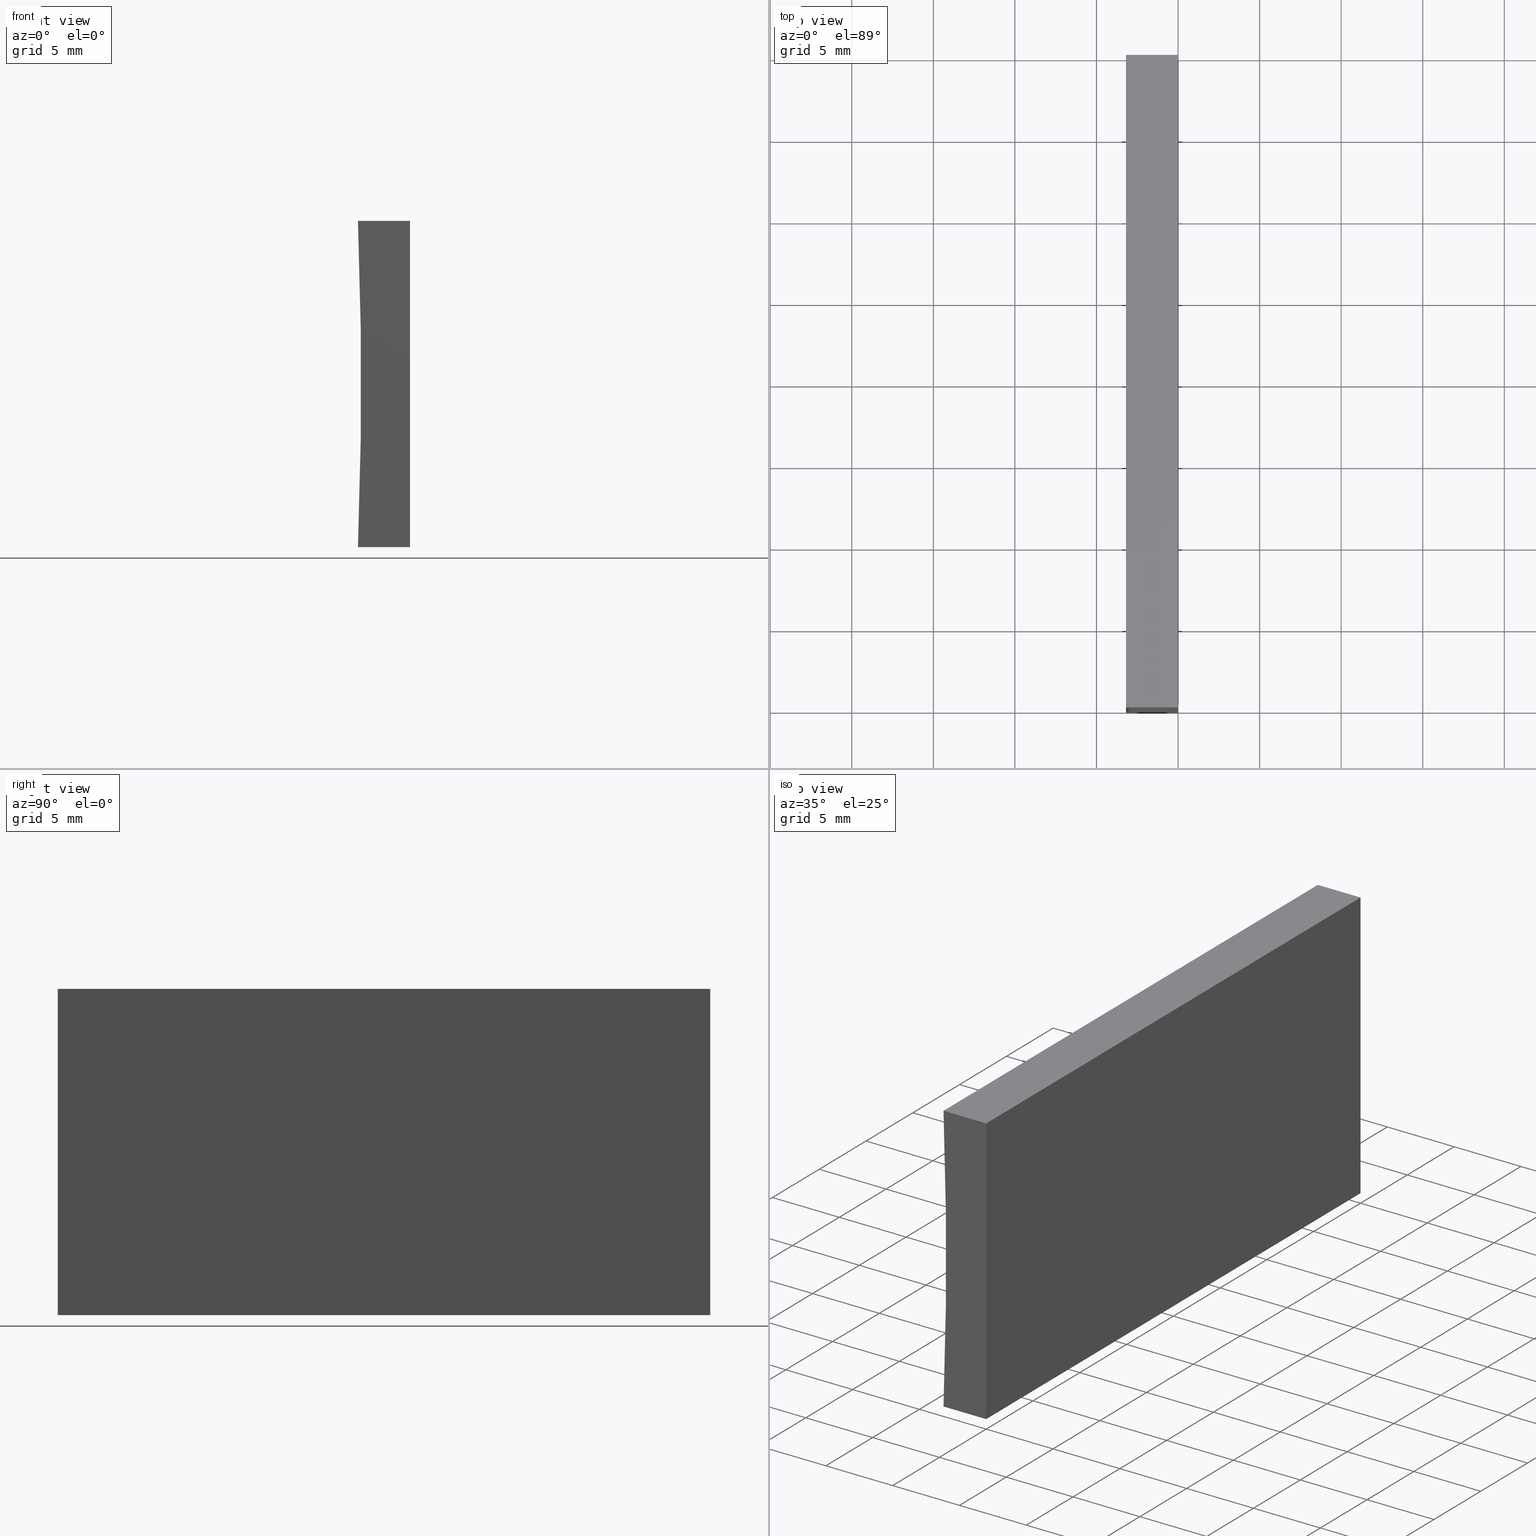
[diagram: canonical four-view strip — front | top / right | iso, engineering-drawing reading convention]
A machine part, canonical four-view strip (front | top / right | iso — engineering-drawing reading convention). The complete STEP part file that produces these views, byte-faithful:
ISO-10303-21;
HEADER;
FILE_DESCRIPTION (( 'STEP AP214' ),
    '1' );
FILE_NAME ('155361.STEP',
    '2019-06-28T07:30:50',
    ( 'user' ),
    ( '΢���й�' ),
    'SwSTEP 2.0',
    'SolidWorks 2016',
    '' );
FILE_SCHEMA (( 'AUTOMOTIVE_DESIGN' ));
ENDSEC;

DATA;
#1 = APPLICATION_CONTEXT ( 'automotive_design' ) ;
#2 = PRESENTATION_LAYER_ASSIGNMENT (  '', '', ( #76 ) ) ;
#3 = ADVANCED_FACE ( 'NONE', ( #160 ), #7, .F. ) ;
#4 = CLOSED_SHELL ( 'NONE', ( #85, #128, #3, #19, #164, #53 ) ) ;
#5 = ORIENTED_EDGE ( 'NONE', *, *, #161, .T. ) ;
#6 = AXIS2_PLACEMENT_3D ( 'NONE', #67, #20, #104 ) ;
#7 = PLANE ( 'NONE',  #25 ) ;
#8 = VECTOR ( 'NONE', #9, 1000.000000000000000 ) ;
#9 = DIRECTION ( 'NONE',  ( -0.0000000000000000000, -1.000000000000000000, -0.0000000000000000000 ) ) ;
#10 = APPLICATION_CONTEXT ( 'automotive_design' ) ;
#11 = LINE ( 'NONE', #138, #125 ) ;
#12 = LINE ( 'NONE', #123, #122 ) ;
#13 = DIRECTION ( 'NONE',  ( 0.0000000000000000000, 0.0000000000000000000, 1.000000000000000000 ) ) ;
#14 = LINE ( 'NONE', #89, #8 ) ;
#15 = PRODUCT_RELATED_PRODUCT_CATEGORY ( 'part', '', ( #51 ) ) ;
#16 = ORIENTED_EDGE ( 'NONE', *, *, #84, .F. ) ;
#17 = FACE_OUTER_BOUND ( 'NONE', #184, .T. ) ;
#18 = PRODUCT_DEFINITION_FORMATION_WITH_SPECIFIED_SOURCE ( '�κ�', '', #51, .NOT_KNOWN. ) ;
#19 = ADVANCED_FACE ( 'NONE', ( #30 ), #62, .F. ) ;
#20 = DIRECTION ( 'NONE',  ( 0.0000000000000000000, 1.000000000000000000, 0.0000000000000000000 ) ) ;
#21 = VERTEX_POINT ( 'NONE', #146 ) ;
#22 = CIRCLE ( 'NONE', #59, 258.5000000000000000 ) ;
#23 = SURFACE_STYLE_FILL_AREA ( #81 ) ;
#24 = CARTESIAN_POINT ( 'NONE',  ( -261.5000000000000000, 0.0000000000000000000, 10.00000000000003600 ) ) ;
#25 = AXIS2_PLACEMENT_3D ( 'NONE', #44, #71, #163 ) ;
#26 = SURFACE_STYLE_FILL_AREA ( #172 ) ;
#27 = DIRECTION ( 'NONE',  ( -1.000000000000000000, 0.0000000000000000000, -1.086410295692778200E-015 ) ) ;
#28 = ORIENTED_EDGE ( 'NONE', *, *, #119, .T. ) ;
#29 = DIRECTION ( 'NONE',  ( 1.000000000000000000, -0.0000000000000000000, -1.086410295692778600E-015 ) ) ;
#30 = FACE_OUTER_BOUND ( 'NONE', #175, .T. ) ;
#31 = LINE ( 'NONE', #202, #96 ) ;
#32 =( LENGTH_UNIT ( ) NAMED_UNIT ( * ) SI_UNIT ( .MILLI., .METRE. ) );
#33 = DIRECTION ( 'NONE',  ( -1.000000000000000000, 0.0000000000000000000, -1.086410295692778200E-015 ) ) ;
#34 = FILL_AREA_STYLE_COLOUR ( '', #60 ) ;
#35 = VECTOR ( 'NONE', #45, 1000.000000000000000 ) ;
#36 = ORIENTED_EDGE ( 'NONE', *, *, #119, .F. ) ;
#37 = CYLINDRICAL_SURFACE ( 'NONE', #70, 258.5000000000000000 ) ;
#38 = ORIENTED_EDGE ( 'NONE', *, *, #171, .F. ) ;
#39 = DIRECTION ( 'NONE',  ( 1.000000000000000000, 0.0000000000000000000, 1.086410295692778200E-015 ) ) ;
#40 = VECTOR ( 'NONE', #33, 1000.000000000000000 ) ;
#41 = PLANE ( 'NONE',  #72 ) ;
#42 = PRODUCT_CONTEXT ( 'NONE', #1, 'mechanical' ) ;
#43 = ORIENTED_EDGE ( 'NONE', *, *, #156, .F. ) ;
#44 = CARTESIAN_POINT ( 'NONE',  ( 1.224646799147353300E-015, 40.00000000000000000, 20.00000000000000000 ) ) ;
#45 = DIRECTION ( 'NONE',  ( -0.0000000000000000000, -1.000000000000000000, -0.0000000000000000000 ) ) ;
#46 = DIRECTION ( 'NONE',  ( 0.0000000000000000000, 1.000000000000000000, 0.0000000000000000000 ) ) ;
#47 = LINE ( 'NONE', #198, #179 ) ;
#48 = PRESENTATION_LAYER_ASSIGNMENT (  '', '', ( #151 ) ) ;
#49 = MECHANICAL_DESIGN_GEOMETRIC_PRESENTATION_REPRESENTATION (  '', ( #151 ), #132 ) ;
#50 = LINE ( 'NONE', #197, #35 ) ;
#51 = PRODUCT ( '155361', '155361', '', ( #42 ) ) ;
#52 = DIRECTION ( 'NONE',  ( -0.0000000000000000000, -1.000000000000000000, -0.0000000000000000000 ) ) ;
#53 = ADVANCED_FACE ( 'NONE', ( #189 ), #141, .F. ) ;
#54 = LINE ( 'NONE', #170, #40 ) ;
#55 = ORIENTED_EDGE ( 'NONE', *, *, #116, .T. ) ;
#56 = LINE ( 'NONE', #110, #195 ) ;
#57 = VERTEX_POINT ( 'NONE', #169 ) ;
#58 = DIRECTION ( 'NONE',  ( -1.000000000000000000, 0.0000000000000000000, 6.123233995736766000E-017 ) ) ;
#59 = AXIS2_PLACEMENT_3D ( 'NONE', #157, #52, #79 ) ;
#60 = COLOUR_RGB ( '',1.000000000000000000, 1.000000000000000000, 1.000000000000000000 ) ;
#61 = ADVANCED_BREP_SHAPE_REPRESENTATION ( '155361', ( #167, #199 ), #106 ) ;
#62 = PLANE ( 'NONE',  #65 ) ;
#63 = ORIENTED_EDGE ( 'NONE', *, *, #171, .T. ) ;
#64 = DIRECTION ( 'NONE',  ( -0.0000000000000000000, -1.000000000000000000, -0.0000000000000000000 ) ) ;
#65 = AXIS2_PLACEMENT_3D ( 'NONE', #180, #58, #185 ) ;
#66 = CIRCLE ( 'NONE', #183, 258.5000000000000000 ) ;
#67 = CARTESIAN_POINT ( 'NONE',  ( -261.5000000000000000, 40.00000000000000000, 10.00000000000003600 ) ) ;
#68 = ORIENTED_EDGE ( 'NONE', *, *, #149, .T. ) ;
#69 = ORIENTED_EDGE ( 'NONE', *, *, #149, .F. ) ;
#70 = AXIS2_PLACEMENT_3D ( 'NONE', #124, #147, #82 ) ;
#71 = DIRECTION ( 'NONE',  ( -1.086410295692778600E-015, 0.0000000000000000000, -1.000000000000000000 ) ) ;
#72 = AXIS2_PLACEMENT_3D ( 'NONE', #155, #173, #39 ) ;
#73 = ORIENTED_EDGE ( 'NONE', *, *, #142, .T. ) ;
#74 = VERTEX_POINT ( 'NONE', #158 ) ;
#75 = ORIENTED_EDGE ( 'NONE', *, *, #116, .F. ) ;
#76 = STYLED_ITEM ( 'NONE', ( #102 ), #167 ) ;
#77 =( NAMED_UNIT ( * ) SI_UNIT ( $, .STERADIAN. ) SOLID_ANGLE_UNIT ( ) );
#78 = APPLICATION_PROTOCOL_DEFINITION ( 'draft international standard', 'automotive_design', 1998, #1 ) ;
#79 = DIRECTION ( 'NONE',  ( 0.0000000000000000000, 0.0000000000000000000, 1.000000000000000000 ) ) ;
#80 = DIRECTION ( 'NONE',  ( -6.123233995736766000E-017, -0.0000000000000000000, -1.000000000000000000 ) ) ;
#81 = FILL_AREA_STYLE ('',( #34 ) ) ;
#82 = DIRECTION ( 'NONE',  ( 0.0000000000000000000, 0.0000000000000000000, -1.000000000000000000 ) ) ;
#83 = PRODUCT_DEFINITION ( 'δ֪', '', #18, #162 ) ;
#84 = EDGE_CURVE ( 'NONE', #177, #191, #31, .T. ) ;
#85 = ADVANCED_FACE ( 'NONE', ( #194 ), #41, .F. ) ;
#86 = EDGE_LOOP ( 'NONE', ( #129, #43, #90, #115 ) ) ;
#87 = SHAPE_DEFINITION_REPRESENTATION ( #153, #61 ) ;
#88 = CARTESIAN_POINT ( 'NONE',  ( 0.0000000000000000000, 0.0000000000000000000, 0.0000000000000000000 ) ) ;
#89 = CARTESIAN_POINT ( 'NONE',  ( 0.0000000000000000000, 40.00000000000000000, 0.0000000000000000000 ) ) ;
#90 = ORIENTED_EDGE ( 'NONE', *, *, #192, .F. ) ;
#91 = DIRECTION ( 'NONE',  ( -6.123233995736766000E-017, -0.0000000000000000000, -1.000000000000000000 ) ) ;
#92 = LINE ( 'NONE', #114, #150 ) ;
#93 = SURFACE_SIDE_STYLE ('',( #26 ) ) ;
#94 = DIRECTION ( 'NONE',  ( 0.0000000000000000000, 0.0000000000000000000, 1.000000000000000000 ) ) ;
#95 = EDGE_LOOP ( 'NONE', ( #55, #131, #69, #134 ) ) ;
#96 = VECTOR ( 'NONE', #188, 1000.000000000000000 ) ;
#97 = CARTESIAN_POINT ( 'NONE',  ( 1.224646799147353300E-015, 40.00000000000000000, 20.00000000000000000 ) ) ;
#98 = ORIENTED_EDGE ( 'NONE', *, *, #118, .T. ) ;
#99 =( GEOMETRIC_REPRESENTATION_CONTEXT ( 3 ) GLOBAL_UNCERTAINTY_ASSIGNED_CONTEXT ( ( #143 ) ) GLOBAL_UNIT_ASSIGNED_CONTEXT ( ( #193, #127, #77 ) ) REPRESENTATION_CONTEXT ( 'NONE', 'WORKASPACE' ) );
#100 = ORIENTED_EDGE ( 'NONE', *, *, #136, .T. ) ;
#101 = PRESENTATION_STYLE_ASSIGNMENT (( #166 ) ) ;
#102 = PRESENTATION_STYLE_ASSIGNMENT (( #201 ) ) ;
#103 = EDGE_LOOP ( 'NONE', ( #135, #36, #75, #203 ) ) ;
#104 = DIRECTION ( 'NONE',  ( 0.0000000000000000000, -0.0000000000000000000, 1.000000000000000000 ) ) ;
#105 = ORIENTED_EDGE ( 'NONE', *, *, #118, .F. ) ;
#106 =( GEOMETRIC_REPRESENTATION_CONTEXT ( 3 ) GLOBAL_UNCERTAINTY_ASSIGNED_CONTEXT ( ( #168 ) ) GLOBAL_UNIT_ASSIGNED_CONTEXT ( ( #32, #145, #196 ) ) REPRESENTATION_CONTEXT ( 'NONE', 'WORKASPACE' ) );
#107 = DIRECTION ( 'NONE',  ( 1.000000000000000000, 0.0000000000000000000, 0.0000000000000000000 ) ) ;
#108 = CARTESIAN_POINT ( 'NONE',  ( -3.193496016844377100, 40.00000000000000000, -1.734723475976807100E-014 ) ) ;
#109 = EDGE_CURVE ( 'NONE', #191, #21, #66, .T. ) ;
#110 = CARTESIAN_POINT ( 'NONE',  ( 1.224646799147353300E-015, 40.00000000000000000, 20.00000000000000000 ) ) ;
#111 = VERTEX_POINT ( 'NONE', #137 ) ;
#112 = PLANE ( 'NONE',  #6 ) ;
#113 = APPLICATION_PROTOCOL_DEFINITION ( 'draft international standard', 'automotive_design', 1998, #10 ) ;
#114 = CARTESIAN_POINT ( 'NONE',  ( 0.0000000000000000000, 40.00000000000000000, 0.0000000000000000000 ) ) ;
#115 = ORIENTED_EDGE ( 'NONE', *, *, #84, .T. ) ;
#116 = EDGE_CURVE ( 'NONE', #21, #74, #47, .T. ) ;
#117 = VERTEX_POINT ( 'NONE', #140 ) ;
#118 = EDGE_CURVE ( 'NONE', #57, #177, #11, .T. ) ;
#119 = EDGE_CURVE ( 'NONE', #74, #111, #178, .T. ) ;
#120 =( LENGTH_UNIT ( ) NAMED_UNIT ( * ) SI_UNIT ( .MILLI., .METRE. ) );
#121 = DIRECTION ( 'NONE',  ( -0.0000000000000000000, -1.000000000000000000, -0.0000000000000000000 ) ) ;
#122 = VECTOR ( 'NONE', #29, 1000.000000000000000 ) ;
#123 = CARTESIAN_POINT ( 'NONE',  ( 1.224646799147353300E-015, 40.00000000000000000, 20.00000000000000000 ) ) ;
#124 = CARTESIAN_POINT ( 'NONE',  ( -261.5000000000000000, 40.00000000000000000, 10.00000000000003600 ) ) ;
#125 = VECTOR ( 'NONE', #27, 1000.000000000000000 ) ;
#126 =( NAMED_UNIT ( * ) PLANE_ANGLE_UNIT ( ) SI_UNIT ( $, .RADIAN. ) );
#127 =( NAMED_UNIT ( * ) PLANE_ANGLE_UNIT ( ) SI_UNIT ( $, .RADIAN. ) );
#128 = ADVANCED_FACE ( 'NONE', ( #190 ), #37, .F. ) ;
#129 = ORIENTED_EDGE ( 'NONE', *, *, #109, .T. ) ;
#130 = FILL_AREA_STYLE_COLOUR ( '', #144 ) ;
#131 = ORIENTED_EDGE ( 'NONE', *, *, #142, .F. ) ;
#132 =( GEOMETRIC_REPRESENTATION_CONTEXT ( 3 ) GLOBAL_UNCERTAINTY_ASSIGNED_CONTEXT ( ( #133 ) ) GLOBAL_UNIT_ASSIGNED_CONTEXT ( ( #120, #126, #204 ) ) REPRESENTATION_CONTEXT ( 'NONE', 'WORKASPACE' ) );
#133 = UNCERTAINTY_MEASURE_WITH_UNIT (LENGTH_MEASURE( 1.000000000000000100E-005 ), #120, 'distance_accuracy_value', 'NONE');
#134 = ORIENTED_EDGE ( 'NONE', *, *, #156, .T. ) ;
#135 = ORIENTED_EDGE ( 'NONE', *, *, #161, .F. ) ;
#136 = EDGE_CURVE ( 'NONE', #165, #57, #92, .T. ) ;
#137 = CARTESIAN_POINT ( 'NONE',  ( 0.0000000000000000000, 0.0000000000000000000, 0.0000000000000000000 ) ) ;
#138 = CARTESIAN_POINT ( 'NONE',  ( 0.0000000000000000000, 40.00000000000000000, 0.0000000000000000000 ) ) ;
#139 = CARTESIAN_POINT ( 'NONE',  ( 0.0000000000000000000, 0.0000000000000000000, 0.0000000000000000000 ) ) ;
#140 = CARTESIAN_POINT ( 'NONE',  ( -3.193496016844379300, 40.00000000000000000, 20.00000000000000400 ) ) ;
#141 = PLANE ( 'NONE',  #187 ) ;
#142 = EDGE_CURVE ( 'NONE', #165, #74, #56, .T. ) ;
#143 = UNCERTAINTY_MEASURE_WITH_UNIT (LENGTH_MEASURE( 1.000000000000000100E-005 ), #193, 'distance_accuracy_value', 'NONE');
#144 = COLOUR_RGB ( '',1.000000000000000000, 1.000000000000000000, 1.000000000000000000 ) ;
#145 =( NAMED_UNIT ( * ) PLANE_ANGLE_UNIT ( ) SI_UNIT ( $, .RADIAN. ) );
#146 = CARTESIAN_POINT ( 'NONE',  ( -3.193496016844379300, 0.0000000000000000000, 20.00000000000000400 ) ) ;
#147 = DIRECTION ( 'NONE',  ( -0.0000000000000000000, -1.000000000000000000, -0.0000000000000000000 ) ) ;
#148 = ORIENTED_EDGE ( 'NONE', *, *, #136, .F. ) ;
#149 = EDGE_CURVE ( 'NONE', #117, #165, #12, .T. ) ;
#150 = VECTOR ( 'NONE', #91, 1000.000000000000000 ) ;
#151 = STYLED_ITEM ( 'NONE', ( #101 ), #61 ) ;
#152 = EDGE_LOOP ( 'NONE', ( #5, #16, #105, #63 ) ) ;
#153 = PRODUCT_DEFINITION_SHAPE ( 'NONE', 'NONE',  #83 ) ;
#154 = SURFACE_SIDE_STYLE ('',( #23 ) ) ;
#155 = CARTESIAN_POINT ( 'NONE',  ( 0.0000000000000000000, 40.00000000000000000, 0.0000000000000000000 ) ) ;
#156 = EDGE_CURVE ( 'NONE', #117, #21, #50, .T. ) ;
#157 = CARTESIAN_POINT ( 'NONE',  ( -261.5000000000000000, 40.00000000000000000, 10.00000000000003600 ) ) ;
#158 = CARTESIAN_POINT ( 'NONE',  ( 1.224646799147353300E-015, 0.0000000000000000000, 20.00000000000000000 ) ) ;
#159 = CARTESIAN_POINT ( 'NONE',  ( -261.5000000000000000, 0.0000000000000000000, 10.00000000000003600 ) ) ;
#160 = FACE_OUTER_BOUND ( 'NONE', #95, .T. ) ;
#161 = EDGE_CURVE ( 'NONE', #111, #191, #54, .T. ) ;
#162 = PRODUCT_DEFINITION_CONTEXT ( 'detailed design', #10, 'design' ) ;
#163 = DIRECTION ( 'NONE',  ( -1.000000000000000000, 0.0000000000000000000, 1.086410295692778600E-015 ) ) ;
#164 = ADVANCED_FACE ( 'NONE', ( #17 ), #112, .T. ) ;
#165 = VERTEX_POINT ( 'NONE', #97 ) ;
#166 = SURFACE_STYLE_USAGE ( .BOTH. , #93 ) ;
#167 = MANIFOLD_SOLID_BREP ( '͹̨-����1', #4 ) ;
#168 = UNCERTAINTY_MEASURE_WITH_UNIT (LENGTH_MEASURE( 1.000000000000000100E-005 ), #32, 'distance_accuracy_value', 'NONE');
#169 = CARTESIAN_POINT ( 'NONE',  ( 0.0000000000000000000, 40.00000000000000000, 0.0000000000000000000 ) ) ;
#170 = CARTESIAN_POINT ( 'NONE',  ( 0.0000000000000000000, 0.0000000000000000000, 0.0000000000000000000 ) ) ;
#171 = EDGE_CURVE ( 'NONE', #57, #111, #14, .T. ) ;
#172 = FILL_AREA_STYLE ('',( #130 ) ) ;
#173 = DIRECTION ( 'NONE',  ( -1.086410295692778200E-015, 0.0000000000000000000, 1.000000000000000000 ) ) ;
#174 = ORIENTED_EDGE ( 'NONE', *, *, #192, .T. ) ;
#175 = EDGE_LOOP ( 'NONE', ( #28, #38, #148, #73 ) ) ;
#176 = MECHANICAL_DESIGN_GEOMETRIC_PRESENTATION_REPRESENTATION (  '', ( #76 ), #99 ) ;
#177 = VERTEX_POINT ( 'NONE', #108 ) ;
#178 = LINE ( 'NONE', #139, #186 ) ;
#179 = VECTOR ( 'NONE', #200, 1000.000000000000000 ) ;
#180 = CARTESIAN_POINT ( 'NONE',  ( 0.0000000000000000000, 40.00000000000000000, 0.0000000000000000000 ) ) ;
#181 = CARTESIAN_POINT ( 'NONE',  ( -3.193496016844377100, 0.0000000000000000000, -1.734723475976807100E-014 ) ) ;
#182 = DIRECTION ( 'NONE',  ( 0.0000000000000000000, -0.0000000000000000000, 1.000000000000000000 ) ) ;
#183 = AXIS2_PLACEMENT_3D ( 'NONE', #24, #64, #94 ) ;
#184 = EDGE_LOOP ( 'NONE', ( #98, #174, #68, #100 ) ) ;
#185 = DIRECTION ( 'NONE',  ( 6.123233995736766000E-017, 0.0000000000000000000, 1.000000000000000000 ) ) ;
#186 = VECTOR ( 'NONE', #80, 1000.000000000000000 ) ;
#187 = AXIS2_PLACEMENT_3D ( 'NONE', #159, #46, #182 ) ;
#188 = DIRECTION ( 'NONE',  ( -0.0000000000000000000, -1.000000000000000000, -0.0000000000000000000 ) ) ;
#189 = FACE_OUTER_BOUND ( 'NONE', #103, .T. ) ;
#190 = FACE_OUTER_BOUND ( 'NONE', #86, .T. ) ;
#191 = VERTEX_POINT ( 'NONE', #181 ) ;
#192 = EDGE_CURVE ( 'NONE', #177, #117, #22, .T. ) ;
#193 =( LENGTH_UNIT ( ) NAMED_UNIT ( * ) SI_UNIT ( .MILLI., .METRE. ) );
#194 = FACE_OUTER_BOUND ( 'NONE', #152, .T. ) ;
#195 = VECTOR ( 'NONE', #121, 1000.000000000000000 ) ;
#196 =( NAMED_UNIT ( * ) SI_UNIT ( $, .STERADIAN. ) SOLID_ANGLE_UNIT ( ) );
#197 = CARTESIAN_POINT ( 'NONE',  ( -3.193496016844379300, 40.00000000000000000, 20.00000000000000400 ) ) ;
#198 = CARTESIAN_POINT ( 'NONE',  ( 1.224646799147353300E-015, 0.0000000000000000000, 20.00000000000000000 ) ) ;
#199 = AXIS2_PLACEMENT_3D ( 'NONE', #88, #13, #107 ) ;
#200 = DIRECTION ( 'NONE',  ( 1.000000000000000000, -0.0000000000000000000, -1.086410295692778600E-015 ) ) ;
#201 = SURFACE_STYLE_USAGE ( .BOTH. , #154 ) ;
#202 = CARTESIAN_POINT ( 'NONE',  ( -3.193496016844377100, 40.00000000000000000, -1.734723475976807100E-014 ) ) ;
#203 = ORIENTED_EDGE ( 'NONE', *, *, #109, .F. ) ;
#204 =( NAMED_UNIT ( * ) SI_UNIT ( $, .STERADIAN. ) SOLID_ANGLE_UNIT ( ) );
ENDSEC;
END-ISO-10303-21;
